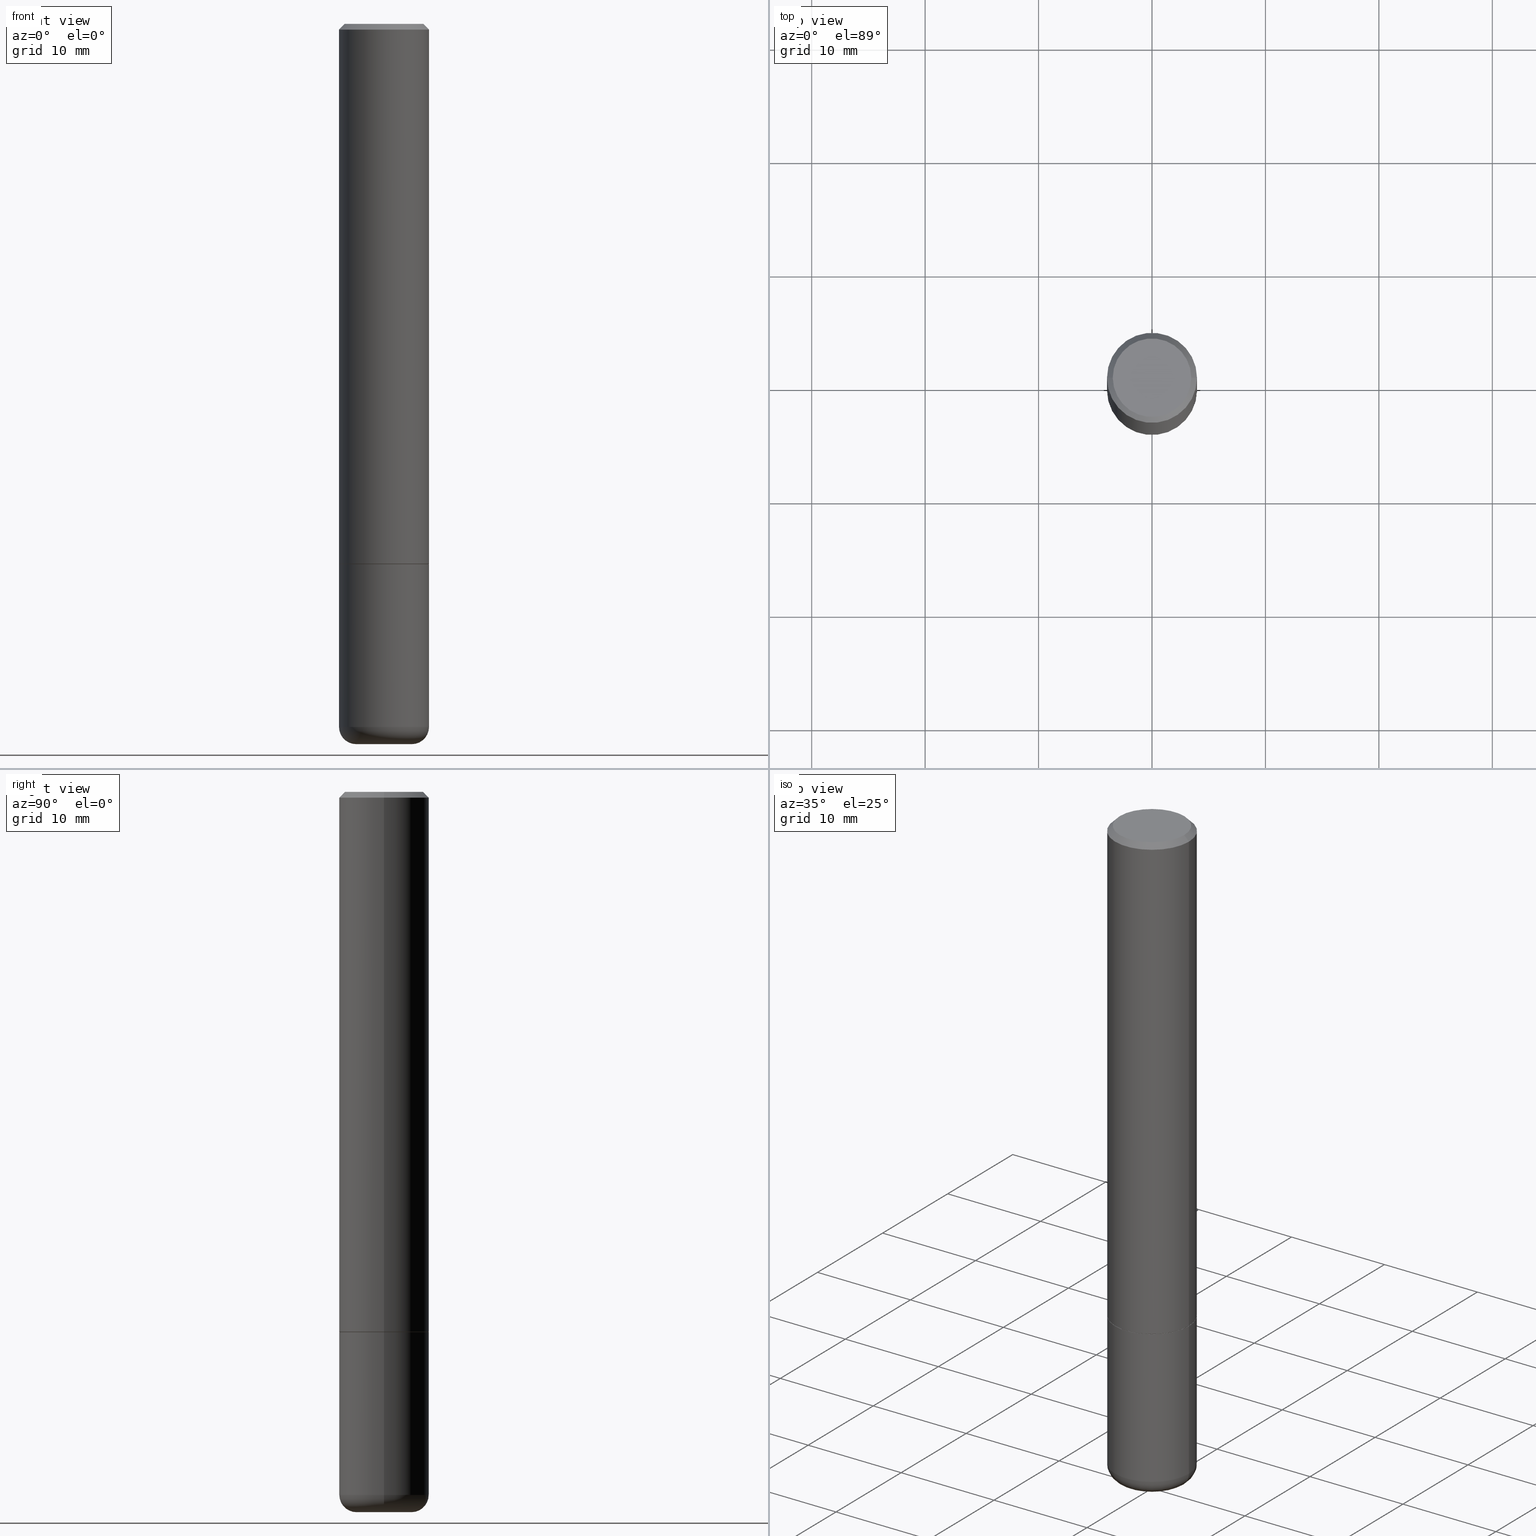
[diagram: canonical four-view strip — front | top / right | iso, engineering-drawing reading convention]
A machine part, canonical four-view strip (front | top / right | iso — engineering-drawing reading convention). The complete STEP part file that produces these views, byte-faithful:
ISO-10303-21;
HEADER;
FILE_DESCRIPTION (( 'STEP AP203' ),
    '1' );
FILE_NAME ('38810.STEP',
    '2024-03-03T14:09:54',
    ( '' ),
    ( '' ),
    'SwSTEP 2.0',
    'SolidWorks 2023',
    '' );
FILE_SCHEMA (( 'CONFIG_CONTROL_DESIGN' ));
ENDSEC;

DATA;
#1 = VERTEX_POINT ( 'NONE', #255 ) ;
#2 = LOCAL_TIME ( 9, 9, 54.00000000000000000, #269 ) ;
#3 = DIRECTION ( 'NONE',  ( -1.000000000000000000, 7.105427357600997914E-15, 0.000000000000000000 ) ) ;
#4 = FACE_OUTER_BOUND ( 'NONE', #387, .T. ) ;
#5 = DIRECTION ( 'NONE',  ( -2.445468806185136597E-29, 3.491481338843145583E-15, 1.000000000000000000 ) ) ;
#6 = ORIENTED_EDGE ( 'NONE', *, *, #291, .T. ) ;
#7 = VECTOR ( 'NONE', #49, 39.37007874015748143 ) ;
#8 = ADVANCED_FACE ( 'NONE', ( #4 ), #384, .F. ) ;
#9 = PERSON_AND_ORGANIZATION ( #292, #231 ) ;
#10 = ORIENTED_EDGE ( 'NONE', *, *, #102, .F. ) ;
#11 = ORIENTED_EDGE ( 'NONE', *, *, #151, .F. ) ;
#12 = COORDINATED_UNIVERSAL_TIME_OFFSET ( 5, 0, .BEHIND. ) ;
#13 = APPLICATION_CONTEXT ( 'configuration controlled 3d designs of mechanical parts and assemblies' ) ;
#14 = PRODUCT_DEFINITION ( 'UNKNOWN', '', #74, #248 ) ;
#15 = AXIS2_PLACEMENT_3D ( 'NONE', #309, #30, #129 ) ;
#16 = CARTESIAN_POINT ( 'NONE',  ( -0.1562500000000000278, 1.021258291611616467E-15, -0.02000000000000003511 ) ) ;
#17 = ORIENTED_EDGE ( 'NONE', *, *, #284, .F. ) ;
#18 = PERSON_AND_ORGANIZATION ( #292, #231 ) ;
#19 = SECURITY_CLASSIFICATION_LEVEL ( 'unclassified' ) ;
#20 = LINE ( 'NONE', #16, #7 ) ;
#21 = ORIENTED_EDGE ( 'NONE', *, *, #89, .F. ) ;
#22 = EDGE_CURVE ( 'NONE', #80, #240, #131, .T. ) ;
#23 = ORIENTED_EDGE ( 'NONE', *, *, #22, .T. ) ;
#24 = FACE_OUTER_BOUND ( 'NONE', #167, .T. ) ;
#25 = CARTESIAN_POINT ( 'NONE',  ( -0.09625000000000000222, -7.726898703045442122E-15, -2.500000000000000444 ) ) ;
#26 = APPROVAL_PERSON_ORGANIZATION ( #18, #304, #53 ) ;
#27 = CARTESIAN_POINT ( 'NONE',  ( 4.585254011597131119E-29, -6.546527510330898707E-15, -1.875000000000000000 ) ) ;
#28 = DIRECTION ( 'NONE',  ( -2.445468806185136877E-29, 3.491481338843145188E-15, 1.000000000000000000 ) ) ;
#29 = EDGE_CURVE ( 'NONE', #198, #37, #236, .T. ) ;
#30 = DIRECTION ( 'NONE',  ( -2.445468806185136597E-29, 3.491481338843145583E-15, 1.000000000000000000 ) ) ;
#31 = CIRCLE ( 'NONE', #344, 0.1362500000000000377 ) ;
#32 = ORIENTED_EDGE ( 'NONE', *, *, #22, .F. ) ;
#33 = COORDINATED_UNIVERSAL_TIME_OFFSET ( 5, 0, .BEHIND. ) ;
#34 = EDGE_CURVE ( 'NONE', #106, #80, #20, .T. ) ;
#35 = DIRECTION ( 'NONE',  ( -2.445468806185136597E-29, 3.491481338843145583E-15, 1.000000000000000000 ) ) ;
#36 = VERTEX_POINT ( 'NONE', #323 ) ;
#37 = VERTEX_POINT ( 'NONE', #358 ) ;
#38 = APPROVAL_DATE_TIME ( #108, #125 ) ;
#39 = CIRCLE ( 'NONE', #181, 0.1562500000000000000 ) ;
#40 = DIRECTION ( 'NONE',  ( -1.000000000000000000, 6.982962677686268288E-15, 0.000000000000000000 ) ) ;
#41 = DIRECTION ( 'NONE',  ( 1.000000000000000000, -6.982962677686268288E-15, 0.000000000000000000 ) ) ;
#42 = DIRECTION ( 'NONE',  ( -2.445468806185136597E-29, 3.491481338843145583E-15, 1.000000000000000000 ) ) ;
#43 = PERSON_AND_ORGANIZATION_ROLE ( 'design_owner' ) ;
#44 = FACE_OUTER_BOUND ( 'NONE', #300, .T. ) ;
#45 = ORIENTED_EDGE ( 'NONE', *, *, #89, .T. ) ;
#46 = CC_DESIGN_PERSON_AND_ORGANIZATION_ASSIGNMENT ( #227, #355, ( #14 ) ) ;
#47 = PERSON_AND_ORGANIZATION ( #292, #231 ) ;
#48 = DATE_AND_TIME ( #122, #319 ) ;
#49 = DIRECTION ( 'NONE',  ( -0.7071067811865467956, 2.468850131082249172E-15, -0.7071067811865482389 ) ) ;
#50 = CIRCLE ( 'NONE', #273, 0.09625000000000000222 ) ;
#51 = PERSON_AND_ORGANIZATION ( #292, #231 ) ;
#52 = LINE ( 'NONE', #326, #72 ) ;
#53 = APPROVAL_ROLE ( '' ) ;
#54 = CARTESIAN_POINT ( 'NONE',  ( 0.000000000000000000, 0.000000000000000000, 0.000000000000000000 ) ) ;
#55 = AXIS2_PLACEMENT_3D ( 'NONE', #415, #254, #3 ) ;
#56 = DIRECTION ( 'NONE',  ( 1.000000000000000000, -6.982962677686265922E-15, 4.876176775795935793E-29 ) ) ;
#57 = CARTESIAN_POINT ( 'NONE',  ( -0.1562500000000002220, -2.196209803259299803E-15, -1.874000000000000110 ) ) ;
#58 = ORIENTED_EDGE ( 'NONE', *, *, #134, .T. ) ;
#59 = CIRCLE ( 'NONE', #114, 0.09625000000000000222 ) ;
#60 = DIRECTION ( 'NONE',  ( 1.000000000000000000, -6.982962677686269077E-15, 0.000000000000000000 ) ) ;
#61 = DIRECTION ( 'NONE',  ( 0.7071067811865957564, -2.468850131082761932E-15, 0.7071067811864992780 ) ) ;
#62 = ORIENTED_EDGE ( 'NONE', *, *, #277, .F. ) ;
#63 = DIRECTION ( 'NONE',  ( -2.445468806185136597E-29, 3.491481338843145583E-15, 1.000000000000000000 ) ) ;
#64 = CARTESIAN_POINT ( 'NONE',  ( 0.000000000000000000, 0.000000000000000000, 0.000000000000000000 ) ) ;
#65 = CIRCLE ( 'NONE', #417, 0.1562500000000000278 ) ;
#66 = VERTEX_POINT ( 'NONE', #270 ) ;
#67 = CARTESIAN_POINT ( 'NONE',  ( 0.000000000000000000, 0.000000000000000000, 0.000000000000000000 ) ) ;
#68 = CARTESIAN_POINT ( 'NONE',  ( 0.1562500000000001388, -1.091087918388480160E-15, 7.619026212181157383E-30 ) ) ;
#69 = APPLICATION_PROTOCOL_DEFINITION ( 'international standard', 'config_control_design', 1994, #141 ) ;
#70 = CYLINDRICAL_SURFACE ( 'NONE', #161, 0.1562500000000001388 ) ;
#71 = ORIENTED_EDGE ( 'NONE', *, *, #164, .F. ) ;
#72 = VECTOR ( 'NONE', #233, 39.37007874015748143 ) ;
#73 = EDGE_CURVE ( 'NONE', #75, #240, #267, .T. ) ;
#74 = PRODUCT_DEFINITION_FORMATION_WITH_SPECIFIED_SOURCE ( 'ANY', '', #189, .NOT_KNOWN. ) ;
#75 = VERTEX_POINT ( 'NONE', #296 ) ;
#76 = EDGE_CURVE ( 'NONE', #375, #368, #140, .T. ) ;
#77 = APPROVAL_STATUS ( 'not_yet_approved' ) ;
#78 = ORIENTED_EDGE ( 'NONE', *, *, #170, .T. ) ;
#79 = DIRECTION ( 'NONE',  ( 1.000000000000000000, -6.982962677686262766E-15, 0.000000000000000000 ) ) ;
#80 = VERTEX_POINT ( 'NONE', #397 ) ;
#81 = CONICAL_SURFACE ( 'NONE', #184, 0.1552499999999999991, 0.7853981633975165577 ) ;
#82 = DIRECTION ( 'NONE',  ( -2.445468806185136597E-29, 3.491481338843145583E-15, 1.000000000000000000 ) ) ;
#83 = PERSON_AND_ORGANIZATION ( #292, #231 ) ;
#84 = DIRECTION ( 'NONE',  ( -2.445468806185136597E-29, 3.491481338843145583E-15, 1.000000000000000000 ) ) ;
#85 = CARTESIAN_POINT ( 'NONE',  ( 0.1552499999999999991, -7.630632466041692655E-15, -1.875000000000000000 ) ) ;
#86 = ORIENTED_EDGE ( 'NONE', *, *, #164, .T. ) ;
#87 = ORIENTED_EDGE ( 'NONE', *, *, #277, .T. ) ;
#88 = APPROVAL_ROLE ( '' ) ;
#89 = EDGE_CURVE ( 'NONE', #198, #80, #115, .T. ) ;
#90 = DIRECTION ( 'NONE',  ( -1.000000000000000000, 6.982962677686265922E-15, -4.876176775795935793E-29 ) ) ;
#91 = CARTESIAN_POINT ( 'NONE',  ( 9.514286648347541549E-16, 0.1362500000000000377, -4.757143324173787538E-16 ) ) ;
#92 = PRODUCT_RELATED_PRODUCT_CATEGORY ( 'detail', '', ( #189 ) ) ;
#93 = ORIENTED_EDGE ( 'NONE', *, *, #144, .F. ) ;
#94 = DIRECTION ( 'NONE',  ( -2.445468806185136877E-29, 3.491481338843145188E-15, 1.000000000000000000 ) ) ;
#95 = ORIENTED_EDGE ( 'NONE', *, *, #238, .T. ) ;
#96 = DATE_AND_TIME ( #407, #317 ) ;
#97 = APPROVAL_PERSON_ORGANIZATION ( #330, #130, #88 ) ;
#98 = AXIS2_PLACEMENT_3D ( 'NONE', #67, #350, #318 ) ;
#99 = DIRECTION ( 'NONE',  ( 2.438088387897960049E-29, -3.491481338843145188E-15, -1.000000000000000000 ) ) ;
#100 = DIRECTION ( 'NONE',  ( -2.445468806185136597E-29, 3.491481338843145583E-15, 1.000000000000000000 ) ) ;
#101 = CARTESIAN_POINT ( 'NONE',  ( 6.113672015462842613E-29, -8.728703347107866520E-15, -2.500000000000000444 ) ) ;
#102 = EDGE_CURVE ( 'NONE', #143, #1, #357, .T. ) ;
#103 = ADVANCED_FACE ( 'NONE', ( #119 ), #150, .T. ) ;
#104 = DIRECTION ( 'NONE',  ( 1.000000000000000000, -6.982962677686268288E-15, 0.000000000000000000 ) ) ;
#105 = CARTESIAN_POINT ( 'NONE',  ( 4.585254011597131119E-29, -6.546527510330898707E-15, -1.875000000000000000 ) ) ;
#106 = VERTEX_POINT ( 'NONE', #229 ) ;
#107 = APPROVAL_PERSON_ORGANIZATION ( #9, #125, #315 ) ;
#108 = DATE_AND_TIME ( #250, #366 ) ;
#109 = EDGE_CURVE ( 'NONE', #37, #198, #388, .T. ) ;
#110 = DIRECTION ( 'NONE',  ( 2.445468806185136597E-29, -3.491481338843145583E-15, -1.000000000000000000 ) ) ;
#111 = AXIS2_PLACEMENT_3D ( 'NONE', #205, #206, #329 ) ;
#112 = MANIFOLD_SOLID_BREP ( 'Body-Move/Copy2[2]', #244 ) ;
#113 = DIRECTION ( 'NONE',  ( -1.000000000000000000, 6.982962677686268288E-15, 0.000000000000000000 ) ) ;
#114 = AXIS2_PLACEMENT_3D ( 'NONE', #314, #35, #285 ) ;
#115 = LINE ( 'NONE', #145, #225 ) ;
#116 = CIRCLE ( 'NONE', #118, 0.06000000000000021289 ) ;
#117 = ORIENTED_EDGE ( 'NONE', *, *, #249, .T. ) ;
#118 = AXIS2_PLACEMENT_3D ( 'NONE', #256, #353, #351 ) ;
#119 = FACE_OUTER_BOUND ( 'NONE', #237, .T. ) ;
#120 = ORIENTED_EDGE ( 'NONE', *, *, #109, .F. ) ;
#121 = CIRCLE ( 'NONE', #259, 0.1362500000000000377 ) ;
#122 = CALENDAR_DATE ( 2024, 3, 3 ) ;
#123 = CARTESIAN_POINT ( 'NONE',  ( 0.1562500000000000278, -1.141782438928665105E-15, -0.02000000000000003511 ) ) ;
#124 = DIRECTION ( 'NONE',  ( -1.000000000000000000, 6.982962677686265922E-15, -4.876176775795935793E-29 ) ) ;
#125 = APPROVAL ( #142, 'UNSPECIFIED' ) ;
#126 = DIRECTION ( 'NONE',  ( 1.000000000000000000, -6.982962677686266711E-15, 4.876176775795936353E-29 ) ) ;
#127 = CIRCLE ( 'NONE', #242, 0.1552499999999999991 ) ;
#128 = CARTESIAN_POINT ( 'NONE',  ( -0.1562500000000001110, -7.408991442152118508E-15, -2.440000000000000391 ) ) ;
#129 = DIRECTION ( 'NONE',  ( 1.000000000000000000, -6.982962677686266711E-15, 4.876176775795936353E-29 ) ) ;
#130 = APPROVAL ( #77, 'UNSPECIFIED' ) ;
#131 = CIRCLE ( 'NONE', #379, 0.1562500000000000278 ) ;
#132 = DIRECTION ( 'NONE',  ( 2.445468806185136597E-29, -3.491481338843145583E-15, -1.000000000000000000 ) ) ;
#133 = ORIENTED_EDGE ( 'NONE', *, *, #214, .F. ) ;
#134 = EDGE_CURVE ( 'NONE', #1, #198, #52, .T. ) ;
#135 = CC_DESIGN_SECURITY_CLASSIFICATION ( #336, ( #74 ) ) ;
#136 = DIRECTION ( 'NONE',  ( 1.000000000000000000, -6.982962677686266711E-15, 4.876176775795936353E-29 ) ) ;
#137 = ORIENTED_EDGE ( 'NONE', *, *, #170, .F. ) ;
#138 = FACE_OUTER_BOUND ( 'NONE', #362, .T. ) ;
#139 = ORIENTED_EDGE ( 'NONE', *, *, #230, .F. ) ;
#140 = CIRCLE ( 'NONE', #331, 0.1562500000000000000 ) ;
#141 = APPLICATION_CONTEXT ( 'configuration controlled 3d designs of mechanical parts and assemblies' ) ;
#142 = APPROVAL_STATUS ( 'not_yet_approved' ) ;
#143 = VERTEX_POINT ( 'NONE', #85 ) ;
#144 = EDGE_CURVE ( 'NONE', #66, #348, #39, .T. ) ;
#145 = CARTESIAN_POINT ( 'NONE',  ( -0.1562500000000001388, 1.110223024625157526E-15, -7.685836078523296765E-30 ) ) ;
#146 = DIRECTION ( 'NONE',  ( 0.7071067811865467956, -7.319954787623254468E-15, -0.7071067811865482389 ) ) ;
#147 = ADVANCED_FACE ( 'NONE', ( #363 ), #335, .T. ) ;
#148 = ORIENTED_EDGE ( 'NONE', *, *, #291, .F. ) ;
#149 = DIRECTION ( 'NONE',  ( -2.445468806185136597E-29, 3.491481338843145583E-15, 1.000000000000000000 ) ) ;
#150 = CONICAL_SURFACE ( 'NONE', #271, 0.1562500000000000278, 0.7853981633974472798 ) ;
#151 = EDGE_CURVE ( 'NONE', #240, #80, #65, .T. ) ;
#152 =( CONVERSION_BASED_UNIT ( 'INCH', #280 ) LENGTH_UNIT ( ) NAMED_UNIT ( #321 ) );
#153 = AXIS2_PLACEMENT_3D ( 'NONE', #27, #212, #56 ) ;
#154 =( NAMED_UNIT ( * ) SI_UNIT ( $, .STERADIAN. ) SOLID_ANGLE_UNIT ( ) );
#155 = SHAPE_DEFINITION_REPRESENTATION ( #377, #322 ) ;
#156 = DIRECTION ( 'NONE',  ( 1.000000000000000000, -6.982962677686266711E-15, 4.876176775795936353E-29 ) ) ;
#157 = DIRECTION ( 'NONE',  ( 2.438088387897960049E-29, -3.491481338843145188E-15, -1.000000000000000000 ) ) ;
#158 = LINE ( 'NONE', #301, #310 ) ;
#159 = DIRECTION ( 'NONE',  ( 1.000000000000000000, -6.982962677686265922E-15, 4.883557194083112340E-29 ) ) ;
#160 = DIRECTION ( 'NONE',  ( 1.000000000000000000, -6.982962677686266711E-15, 4.876176775795936353E-29 ) ) ;
#161 = AXIS2_PLACEMENT_3D ( 'NONE', #165, #5, #136 ) ;
#162 = CONICAL_SURFACE ( 'NONE', #264, 0.1552499999999999991, 0.7853981633975165577 ) ;
#163 = CIRCLE ( 'NONE', #395, 0.1562500000000000000 ) ;
#164 = EDGE_CURVE ( 'NONE', #75, #106, #121, .T. ) ;
#165 = CARTESIAN_POINT ( 'NONE',  ( 0.000000000000000000, 0.000000000000000000, 0.000000000000000000 ) ) ;
#166 = LINE ( 'NONE', #68, #374 ) ;
#167 = EDGE_LOOP ( 'NONE', ( #139, #272, #192, #93 ) ) ;
#168 = ORIENTED_EDGE ( 'NONE', *, *, #311, .F. ) ;
#169 = PERSON_AND_ORGANIZATION_ROLE ( 'classification_officer' ) ;
#170 = EDGE_CURVE ( 'NONE', #106, #75, #31, .T. ) ;
#171 = DIRECTION ( 'NONE',  ( -2.445468806185136597E-29, 3.491481338843145583E-15, 1.000000000000000000 ) ) ;
#172 = VECTOR ( 'NONE', #146, 39.37007874015748143 ) ;
#173 = CARTESIAN_POINT ( 'NONE',  ( 4.585254011597131119E-29, -6.546527510330898707E-15, -1.875000000000000000 ) ) ;
#174 = DATE_AND_TIME ( #365, #372 ) ;
#175 = CARTESIAN_POINT ( 'NONE',  ( 5.966943887091733341E-29, -8.519214466777275048E-15, -2.440000000000000391 ) ) ;
#176 = ORIENTED_EDGE ( 'NONE', *, *, #311, .T. ) ;
#177 = CARTESIAN_POINT ( 'NONE',  ( 0.1552499999999999991, -7.630632466041692655E-15, -1.875000000000000000 ) ) ;
#178 = CC_DESIGN_DATE_AND_TIME_ASSIGNMENT ( #174, #204, ( #14 ) ) ;
#179 = DIRECTION ( 'NONE',  ( 1.000000000000000000, -6.982962677686266711E-15, 0.000000000000000000 ) ) ;
#180 = CARTESIAN_POINT ( 'NONE',  ( 0.1562500000000001110, -9.610302385165753433E-15, -2.440000000000000391 ) ) ;
#181 = AXIS2_PLACEMENT_3D ( 'NONE', #173, #208, #235 ) ;
#182 = DIRECTION ( 'NONE',  ( -2.445468806185136597E-29, 3.491481338843145583E-15, 1.000000000000000000 ) ) ;
#183 = ORIENTED_EDGE ( 'NONE', *, *, #144, .T. ) ;
#184 = AXIS2_PLACEMENT_3D ( 'NONE', #389, #401, #305 ) ;
#185 = CARTESIAN_POINT ( 'NONE',  ( 0.1562500000000000278, -1.141782438928665105E-15, -0.02000000000000003511 ) ) ;
#186 = CARTESIAN_POINT ( 'NONE',  ( -3.796142312261662725E-29, -2.292012149601313989E-14, -2.500000000000000000 ) ) ;
#187 = CYLINDRICAL_SURFACE ( 'NONE', #15, 0.1562500000000000000 ) ;
#188 = CARTESIAN_POINT ( 'NONE',  ( 5.966943887091733341E-29, -8.519214466777275048E-15, -2.440000000000000391 ) ) ;
#189 = PRODUCT ( '38810', '38810', '', ( #418 ) ) ;
#190 = FACE_OUTER_BOUND ( 'NONE', #306, .T. ) ;
#191 =( GEOMETRIC_REPRESENTATION_CONTEXT ( 3 ) GLOBAL_UNCERTAINTY_ASSIGNED_CONTEXT ( ( #216 ) ) GLOBAL_UNIT_ASSIGNED_CONTEXT ( ( #152, #340, #154 ) ) REPRESENTATION_CONTEXT ( 'NONE', 'WORKASPACE' ) );
#192 = ORIENTED_EDGE ( 'NONE', *, *, #214, .T. ) ;
#193 = CC_DESIGN_PERSON_AND_ORGANIZATION_ASSIGNMENT ( #83, #324, ( #74 ) ) ;
#194 = PERSON_AND_ORGANIZATION ( #292, #231 ) ;
#195 = FACE_OUTER_BOUND ( 'NONE', #224, .T. ) ;
#196 = ORIENTED_EDGE ( 'NONE', *, *, #34, .F. ) ;
#197 = AXIS2_PLACEMENT_3D ( 'NONE', #266, #149, #211 ) ;
#198 = VERTEX_POINT ( 'NONE', #57 ) ;
#199 = DIRECTION ( 'NONE',  ( -2.445468806185136597E-29, 3.491481338843145583E-15, 1.000000000000000000 ) ) ;
#200 = DIRECTION ( 'NONE',  ( -1.000000000000000000, 6.982962677686265922E-15, -4.876176775795935793E-29 ) ) ;
#201 = CC_DESIGN_PERSON_AND_ORGANIZATION_ASSIGNMENT ( #194, #43, ( #189 ) ) ;
#202 = DATE_TIME_ROLE ( 'classification_date' ) ;
#203 = AXIS2_PLACEMENT_3D ( 'NONE', #263, #82, #394 ) ;
#204 = DATE_TIME_ROLE ( 'creation_date' ) ;
#205 = CARTESIAN_POINT ( 'NONE',  ( 4.582808542790945516E-29, -6.543036028992054911E-15, -1.874000000000000110 ) ) ;
#206 = DIRECTION ( 'NONE',  ( -2.445468806185136597E-29, 3.491481338843145583E-15, 1.000000000000000000 ) ) ;
#207 = ORIENTED_EDGE ( 'NONE', *, *, #109, .T. ) ;
#208 = DIRECTION ( 'NONE',  ( -2.445468806185136597E-29, 3.491481338843145583E-15, 1.000000000000000000 ) ) ;
#209 = ORIENTED_EDGE ( 'NONE', *, *, #238, .F. ) ;
#210 = CALENDAR_DATE ( 2024, 3, 3 ) ;
#211 = DIRECTION ( 'NONE',  ( 1.000000000000000000, -6.982962677686265922E-15, 0.000000000000000000 ) ) ;
#212 = DIRECTION ( 'NONE',  ( -2.438088387897960049E-29, 3.491481338843145188E-15, 1.000000000000000000 ) ) ;
#213 = CC_DESIGN_APPROVAL ( #130, ( #74 ) ) ;
#214 = EDGE_CURVE ( 'NONE', #375, #348, #158, .T. ) ;
#215 =( LENGTH_UNIT ( ) NAMED_UNIT ( * ) SI_UNIT ( $, .METRE. ) );
#216 = UNCERTAINTY_MEASURE_WITH_UNIT (LENGTH_MEASURE( 1.000000000000000082E-05 ), #152, 'distance_accuracy_value', 'NONE');
#217 = CARTESIAN_POINT ( 'NONE',  ( 4.585254011597131119E-29, -6.546527510330898707E-15, -1.875000000000000000 ) ) ;
#218 = EDGE_CURVE ( 'NONE', #368, #375, #228, .T. ) ;
#219 = ORIENTED_EDGE ( 'NONE', *, *, #249, .F. ) ;
#220 = DIRECTION ( 'NONE',  ( -2.445468806185136597E-29, 3.491481338843145583E-15, 1.000000000000000000 ) ) ;
#221 = AXIS2_PLACEMENT_3D ( 'NONE', #367, #404, #126 ) ;
#222 = ORIENTED_EDGE ( 'NONE', *, *, #268, .F. ) ;
#223 = ADVANCED_FACE ( 'NONE', ( #24 ), #282, .T. ) ;
#224 = EDGE_LOOP ( 'NONE', ( #381, #58, #120, #361 ) ) ;
#225 = VECTOR ( 'NONE', #400, 39.37007874015748143 ) ;
#226 = CARTESIAN_POINT ( 'NONE',  ( 5.966943887091733341E-29, -8.519214466777275048E-15, -2.440000000000000391 ) ) ;
#227 = PERSON_AND_ORGANIZATION ( #292, #231 ) ;
#228 = CIRCLE ( 'NONE', #370, 0.1562500000000000000 ) ;
#229 = CARTESIAN_POINT ( 'NONE',  ( -0.1362500000000000377, 9.863434782231852123E-16, -6.775751096333141285E-30 ) ) ;
#230 = EDGE_CURVE ( 'NONE', #368, #66, #241, .T. ) ;
#231 = ORGANIZATION ( 'UNSPECIFIED', 'UNSPECIFIED', '' ) ;
#232 = DATE_AND_TIME ( #210, #2 ) ;
#233 = DIRECTION ( 'NONE',  ( -0.7071067811865957564, 7.493145998870527710E-15, 0.7071067811864992780 ) ) ;
#234 = ORIENTED_EDGE ( 'NONE', *, *, #73, .T. ) ;
#235 = DIRECTION ( 'NONE',  ( 1.000000000000000000, -6.982962677686269077E-15, 0.000000000000000000 ) ) ;
#236 = CIRCLE ( 'NONE', #197, 0.1562500000000002220 ) ;
#237 = EDGE_LOOP ( 'NONE', ( #390, #137, #399, #23 ) ) ;
#238 = EDGE_CURVE ( 'NONE', #348, #66, #163, .T. ) ;
#239 = DIRECTION ( 'NONE',  ( 1.000000000000000000, -6.982962677686266711E-15, 4.876176775795936353E-29 ) ) ;
#240 = VERTEX_POINT ( 'NONE', #185 ) ;
#241 = LINE ( 'NONE', #369, #339 ) ;
#242 = AXIS2_PLACEMENT_3D ( 'NONE', #247, #100, #41 ) ;
#243 = ADVANCED_FACE ( 'NONE', ( #408 ), #187, .T. ) ;
#244 = CLOSED_SHELL ( 'NONE', ( #316, #295, #262, #103, #147, #332, #409, #360 ) ) ;
#245 = DIRECTION ( 'NONE',  ( 1.000000000000000000, -6.982962677686262766E-15, 0.000000000000000000 ) ) ;
#246 = AXIS2_PLACEMENT_3D ( 'NONE', #91, #99, #90 ) ;
#247 = CARTESIAN_POINT ( 'NONE',  ( 4.585254011597131119E-29, -6.546527510330898707E-15, -1.875000000000000000 ) ) ;
#248 = DESIGN_CONTEXT ( 'detailed design', #141, 'design' ) ;
#249 = EDGE_CURVE ( 'NONE', #1, #143, #127, .T. ) ;
#250 = CALENDAR_DATE ( 2024, 3, 3 ) ;
#251 = DIRECTION ( 'NONE',  ( -2.445468806185136877E-29, 3.491481338843145188E-15, 1.000000000000000000 ) ) ;
#252 = MANIFOLD_SOLID_BREP ( 'Body-Move/Copy2[1]', #333 ) ;
#253 = EDGE_LOOP ( 'NONE', ( #78, #86 ) ) ;
#254 = DIRECTION ( 'NONE',  ( 7.105427357601001859E-15, 1.000000000000000000, -3.491481338843145583E-15 ) ) ;
#255 = CARTESIAN_POINT ( 'NONE',  ( -0.1552499999999999991, -5.438111458715120773E-15, -1.875000000000000000 ) ) ;
#256 = CARTESIAN_POINT ( 'NONE',  ( 0.09625000000000000222, -9.191324624504578377E-15, -2.440000000000000391 ) ) ;
#257 = ORIENTED_EDGE ( 'NONE', *, *, #29, .F. ) ;
#258 = CC_DESIGN_DATE_AND_TIME_ASSIGNMENT ( #48, #202, ( #336 ) ) ;
#259 = AXIS2_PLACEMENT_3D ( 'NONE', #64, #341, #239 ) ;
#260 = ORIENTED_EDGE ( 'NONE', *, *, #134, .F. ) ;
#261 = EDGE_LOOP ( 'NONE', ( #10, #219 ) ) ;
#262 = ADVANCED_FACE ( 'NONE', ( #190 ), #281, .T. ) ;
#263 = CARTESIAN_POINT ( 'NONE',  ( 4.585254011597131119E-29, -6.546527510330898707E-15, -1.875000000000000000 ) ) ;
#264 = AXIS2_PLACEMENT_3D ( 'NONE', #380, #385, #104 ) ;
#265 = AXIS2_PLACEMENT_3D ( 'NONE', #54, #220, #160 ) ;
#266 = CARTESIAN_POINT ( 'NONE',  ( 4.582808542790945516E-29, -6.543036028992054911E-15, -1.874000000000000110 ) ) ;
#267 = LINE ( 'NONE', #123, #172 ) ;
#268 = EDGE_CURVE ( 'NONE', #36, #416, #50, .T. ) ;
#269 = COORDINATED_UNIVERSAL_TIME_OFFSET ( 5, 0, .BEHIND. ) ;
#270 = CARTESIAN_POINT ( 'NONE',  ( -0.1562500000000000000, -6.422647963928930337E-15, -1.875000000000000000 ) ) ;
#271 = AXIS2_PLACEMENT_3D ( 'NONE', #396, #110, #113 ) ;
#272 = ORIENTED_EDGE ( 'NONE', *, *, #218, .T. ) ;
#273 = AXIS2_PLACEMENT_3D ( 'NONE', #101, #199, #286 ) ;
#274 = CC_DESIGN_APPROVAL ( #125, ( #14 ) ) ;
#275 = CARTESIAN_POINT ( 'NONE',  ( 5.966943887091733341E-29, -8.519214466777275048E-15, -2.440000000000000391 ) ) ;
#276 = CARTESIAN_POINT ( 'NONE',  ( 0.1562500000000000000, -7.637615428719378669E-15, -1.875000000000000000 ) ) ;
#277 = EDGE_CURVE ( 'NONE', #416, #36, #59, .T. ) ;
#278 = PLANE ( 'NONE',  #346 ) ;
#279 = DIRECTION ( 'NONE',  ( -2.445468806185136597E-29, 3.491481338843145583E-15, 1.000000000000000000 ) ) ;
#280 = LENGTH_MEASURE_WITH_UNIT ( LENGTH_MEASURE( 0.02539999999999999897 ), #215 );
#281 = CONICAL_SURFACE ( 'NONE', #410, 0.1562500000000000278, 0.7853981633974472798 ) ;
#282 = CYLINDRICAL_SURFACE ( 'NONE', #221, 0.1562500000000000000 ) ;
#283 = VECTOR ( 'NONE', #61, 39.37007874015748143 ) ;
#284 = EDGE_CURVE ( 'NONE', #416, #368, #327, .T. ) ;
#285 = DIRECTION ( 'NONE',  ( 1.000000000000000000, -6.982962677686269077E-15, 0.000000000000000000 ) ) ;
#286 = DIRECTION ( 'NONE',  ( 1.000000000000000000, -6.982962677686269077E-15, 0.000000000000000000 ) ) ;
#287 = ORIENTED_EDGE ( 'NONE', *, *, #151, .T. ) ;
#288 = ORIENTED_EDGE ( 'NONE', *, *, #356, .T. ) ;
#289 = TOROIDAL_SURFACE ( 'NONE', #298, 0.09625000000000000222, 0.06000000000000023370 ) ;
#290 = ORIENTED_EDGE ( 'NONE', *, *, #76, .F. ) ;
#291 = EDGE_CURVE ( 'NONE', #37, #240, #166, .T. ) ;
#292 = PERSON ( 'UNSPECIFIED', 'UNSPECIFIED', 'UNSPECIFIED', ('UNSPECIFIED'), ('UNSPECIFIED'), ('UNSPECIFIED') ) ;
#293 = DIRECTION ( 'NONE',  ( 1.000000000000000000, -6.982962677686266711E-15, 0.000000000000000000 ) ) ;
#294 = DIRECTION ( 'NONE',  ( 2.438088387897960049E-29, -3.491481338843145188E-15, -1.000000000000000000 ) ) ;
#295 = ADVANCED_FACE ( 'NONE', ( #44 ), #70, .T. ) ;
#296 = CARTESIAN_POINT ( 'NONE',  ( 0.1362500000000000377, -1.038262645562518322E-15, 6.957025900226697878E-30 ) ) ;
#297 = AXIS2_PLACEMENT_3D ( 'NONE', #105, #294, #200 ) ;
#298 = AXIS2_PLACEMENT_3D ( 'NONE', #226, #84, #159 ) ;
#299 = PERSON_AND_ORGANIZATION_ROLE ( 'design_supplier' ) ;
#300 = EDGE_LOOP ( 'NONE', ( #207, #45, #11, #148 ) ) ;
#301 = CARTESIAN_POINT ( 'NONE',  ( 0.1562500000000000000, -1.091087918388479174E-15, 7.619026212181150377E-30 ) ) ;
#302 = FACE_OUTER_BOUND ( 'NONE', #261, .T. ) ;
#303 = APPROVAL_DATE_TIME ( #96, #304 ) ;
#304 = APPROVAL ( #334, 'UNSPECIFIED' ) ;
#305 = DIRECTION ( 'NONE',  ( 1.000000000000000000, -6.982962677686268288E-15, 0.000000000000000000 ) ) ;
#306 = EDGE_LOOP ( 'NONE', ( #71, #234, #287, #196 ) ) ;
#307 = CC_DESIGN_APPROVAL ( #304, ( #336 ) ) ;
#308 = CARTESIAN_POINT ( 'NONE',  ( 0.000000000000000000, 0.000000000000000000, 0.000000000000000000 ) ) ;
#309 = CARTESIAN_POINT ( 'NONE',  ( 0.000000000000000000, 0.000000000000000000, 0.000000000000000000 ) ) ;
#310 = VECTOR ( 'NONE', #28, 39.37007874015748143 ) ;
#311 = EDGE_CURVE ( 'NONE', #36, #375, #116, .T. ) ;
#312 = FACE_OUTER_BOUND ( 'NONE', #359, .T. ) ;
#313 = COORDINATED_UNIVERSAL_TIME_OFFSET ( 5, 0, .BEHIND. ) ;
#314 = CARTESIAN_POINT ( 'NONE',  ( 6.113672015462842613E-29, -8.728703347107866520E-15, -2.500000000000000444 ) ) ;
#315 = APPROVAL_ROLE ( '' ) ;
#316 = ADVANCED_FACE ( 'NONE', ( #195 ), #162, .T. ) ;
#317 = LOCAL_TIME ( 9, 9, 54.00000000000000000, #33 ) ;
#318 = DIRECTION ( 'NONE',  ( 1.000000000000000000, 0.000000000000000000, 0.000000000000000000 ) ) ;
#319 = LOCAL_TIME ( 9, 9, 54.00000000000000000, #12 ) ;
#320 = CARTESIAN_POINT ( 'NONE',  ( 4.890937612370281041E-31, -6.982962677686302702E-17, -0.02000000000000003511 ) ) ;
#321 = DIMENSIONAL_EXPONENTS ( 1.000000000000000000, 0.000000000000000000, 0.000000000000000000, 0.000000000000000000, 0.000000000000000000, 0.000000000000000000, 0.000000000000000000 ) ;
#322 = ADVANCED_BREP_SHAPE_REPRESENTATION ( '38810', ( #252, #112, #98 ), #191 ) ;
#323 = CARTESIAN_POINT ( 'NONE',  ( 0.09625000000000000222, -9.400813504835169849E-15, -2.500000000000000444 ) ) ;
#324 = PERSON_AND_ORGANIZATION_ROLE ( 'creator' ) ;
#325 = TOROIDAL_SURFACE ( 'NONE', #383, 0.09625000000000000222, 0.06000000000000023370 ) ;
#326 = CARTESIAN_POINT ( 'NONE',  ( -0.1552499999999999991, -5.443409913063343964E-15, -1.875000000000000000 ) ) ;
#327 = CIRCLE ( 'NONE', #55, 0.06000000000000021289 ) ;
#328 = APPROVAL_DATE_TIME ( #232, #130 ) ;
#329 = DIRECTION ( 'NONE',  ( 1.000000000000000000, -6.982962677686265922E-15, 0.000000000000000000 ) ) ;
#330 = PERSON_AND_ORGANIZATION ( #292, #231 ) ;
#331 = AXIS2_PLACEMENT_3D ( 'NONE', #175, #171, #79 ) ;
#332 = ADVANCED_FACE ( 'NONE', ( #138 ), #81, .T. ) ;
#333 = CLOSED_SHELL ( 'NONE', ( #243, #343, #8, #223, #349, #414 ) ) ;
#334 = APPROVAL_STATUS ( 'not_yet_approved' ) ;
#335 = CYLINDRICAL_SURFACE ( 'NONE', #265, 0.1562500000000001388 ) ;
#336 = SECURITY_CLASSIFICATION ( '', '', #19 ) ;
#337 = EDGE_LOOP ( 'NONE', ( #222, #62 ) ) ;
#338 = CC_DESIGN_PERSON_AND_ORGANIZATION_ASSIGNMENT ( #47, #299, ( #74 ) ) ;
#339 = VECTOR ( 'NONE', #94, 39.37007874015748143 ) ;
#340 =( NAMED_UNIT ( * ) PLANE_ANGLE_UNIT ( ) SI_UNIT ( $, .RADIAN. ) );
#341 = DIRECTION ( 'NONE',  ( -2.445468806185136597E-29, 3.491481338843145583E-15, 1.000000000000000000 ) ) ;
#342 = DIRECTION ( 'NONE',  ( -2.445468806185136597E-29, 3.491481338843145583E-15, 1.000000000000000000 ) ) ;
#343 = ADVANCED_FACE ( 'NONE', ( #391 ), #289, .T. ) ;
#344 = AXIS2_PLACEMENT_3D ( 'NONE', #308, #279, #156 ) ;
#345 = ORIENTED_EDGE ( 'NONE', *, *, #218, .F. ) ;
#346 = AXIS2_PLACEMENT_3D ( 'NONE', #186, #157, #124 ) ;
#347 = APPLICATION_PROTOCOL_DEFINITION ( 'international standard', 'config_control_design', 1994, #13 ) ;
#348 = VERTEX_POINT ( 'NONE', #276 ) ;
#349 = ADVANCED_FACE ( 'NONE', ( #312 ), #325, .T. ) ;
#350 = DIRECTION ( 'NONE',  ( 0.000000000000000000, 0.000000000000000000, 1.000000000000000000 ) ) ;
#351 = DIRECTION ( 'NONE',  ( 1.000000000000000000, -6.982962677686275388E-15, 0.000000000000000000 ) ) ;
#352 = EDGE_LOOP ( 'NONE', ( #412, #354, #209, #133 ) ) ;
#353 = DIRECTION ( 'NONE',  ( -6.982962677686266711E-15, -1.000000000000000000, 3.491481338843145583E-15 ) ) ;
#354 = ORIENTED_EDGE ( 'NONE', *, *, #230, .T. ) ;
#355 = PERSON_AND_ORGANIZATION_ROLE ( 'creator' ) ;
#356 = EDGE_CURVE ( 'NONE', #143, #37, #402, .T. ) ;
#357 = CIRCLE ( 'NONE', #203, 0.1552499999999999991 ) ;
#358 = CARTESIAN_POINT ( 'NONE',  ( 0.1562500000000002220, -7.634123947380535662E-15, -1.874000000000000110 ) ) ;
#359 = EDGE_LOOP ( 'NONE', ( #17, #87, #176, #345 ) ) ;
#360 = ADVANCED_FACE ( 'NONE', ( #371 ), #364, .F. ) ;
#361 = ORIENTED_EDGE ( 'NONE', *, *, #356, .F. ) ;
#362 = EDGE_LOOP ( 'NONE', ( #260, #117, #288, #257 ) ) ;
#363 = FACE_OUTER_BOUND ( 'NONE', #376, .T. ) ;
#364 = PLANE ( 'NONE',  #246 ) ;
#365 = CALENDAR_DATE ( 2024, 3, 3 ) ;
#366 = LOCAL_TIME ( 9, 9, 54.00000000000000000, #392 ) ;
#367 = CARTESIAN_POINT ( 'NONE',  ( 0.000000000000000000, 0.000000000000000000, 0.000000000000000000 ) ) ;
#368 = VERTEX_POINT ( 'NONE', #128 ) ;
#369 = CARTESIAN_POINT ( 'NONE',  ( -0.1562500000000000000, 1.110223024625156540E-15, -7.685836078523291160E-30 ) ) ;
#370 = AXIS2_PLACEMENT_3D ( 'NONE', #275, #342, #245 ) ;
#371 = FACE_OUTER_BOUND ( 'NONE', #253, .T. ) ;
#372 = LOCAL_TIME ( 9, 9, 54.00000000000000000, #313 ) ;
#373 = ORIENTED_EDGE ( 'NONE', *, *, #284, .T. ) ;
#374 = VECTOR ( 'NONE', #251, 39.37007874015748143 ) ;
#375 = VERTEX_POINT ( 'NONE', #180 ) ;
#376 = EDGE_LOOP ( 'NONE', ( #21, #398, #6, #32 ) ) ;
#377 = PRODUCT_DEFINITION_SHAPE ( 'NONE', 'NONE',  #14 ) ;
#378 = CARTESIAN_POINT ( 'NONE',  ( 4.890937612370281041E-31, -6.982962677686302702E-17, -0.02000000000000003511 ) ) ;
#379 = AXIS2_PLACEMENT_3D ( 'NONE', #320, #42, #293 ) ;
#380 = CARTESIAN_POINT ( 'NONE',  ( 4.585254011597131119E-29, -6.546527510330898707E-15, -1.875000000000000000 ) ) ;
#381 = ORIENTED_EDGE ( 'NONE', *, *, #102, .T. ) ;
#382 = CC_DESIGN_PERSON_AND_ORGANIZATION_ASSIGNMENT ( #51, #169, ( #336 ) ) ;
#383 = AXIS2_PLACEMENT_3D ( 'NONE', #188, #182, #403 ) ;
#384 = PLANE ( 'NONE',  #297 ) ;
#385 = DIRECTION ( 'NONE',  ( -2.445468806185136597E-29, 3.491481338843145583E-15, 1.000000000000000000 ) ) ;
#386 = EDGE_LOOP ( 'NONE', ( #393, #373, #290, #168 ) ) ;
#387 = EDGE_LOOP ( 'NONE', ( #95, #183 ) ) ;
#388 = CIRCLE ( 'NONE', #111, 0.1562500000000002220 ) ;
#389 = CARTESIAN_POINT ( 'NONE',  ( 4.585254011597131119E-29, -6.546527510330898707E-15, -1.875000000000000000 ) ) ;
#390 = ORIENTED_EDGE ( 'NONE', *, *, #73, .F. ) ;
#391 = FACE_OUTER_BOUND ( 'NONE', #386, .T. ) ;
#392 = COORDINATED_UNIVERSAL_TIME_OFFSET ( 5, 0, .BEHIND. ) ;
#393 = ORIENTED_EDGE ( 'NONE', *, *, #268, .T. ) ;
#394 = DIRECTION ( 'NONE',  ( 1.000000000000000000, -6.982962677686268288E-15, 0.000000000000000000 ) ) ;
#395 = AXIS2_PLACEMENT_3D ( 'NONE', #217, #63, #60 ) ;
#396 = CARTESIAN_POINT ( 'NONE',  ( 4.890937612370281041E-31, -6.982962677686302702E-17, -0.02000000000000003511 ) ) ;
#397 = CARTESIAN_POINT ( 'NONE',  ( -0.1562500000000000278, 1.021258291611616467E-15, -0.02000000000000003511 ) ) ;
#398 = ORIENTED_EDGE ( 'NONE', *, *, #29, .T. ) ;
#399 = ORIENTED_EDGE ( 'NONE', *, *, #34, .T. ) ;
#400 = DIRECTION ( 'NONE',  ( -2.445468806185136877E-29, 3.491481338843145188E-15, 1.000000000000000000 ) ) ;
#401 = DIRECTION ( 'NONE',  ( -2.445468806185136597E-29, 3.491481338843145583E-15, 1.000000000000000000 ) ) ;
#402 = LINE ( 'NONE', #177, #283 ) ;
#403 = DIRECTION ( 'NONE',  ( 1.000000000000000000, -6.982962677686265922E-15, 4.883557194083112340E-29 ) ) ;
#404 = DIRECTION ( 'NONE',  ( -2.445468806185136597E-29, 3.491481338843145583E-15, 1.000000000000000000 ) ) ;
#405 = FACE_OUTER_BOUND ( 'NONE', #337, .T. ) ;
#406 = PLANE ( 'NONE',  #153 ) ;
#407 = CALENDAR_DATE ( 2024, 3, 3 ) ;
#408 = FACE_OUTER_BOUND ( 'NONE', #352, .T. ) ;
#409 = ADVANCED_FACE ( 'NONE', ( #302 ), #406, .F. ) ;
#410 = AXIS2_PLACEMENT_3D ( 'NONE', #378, #132, #40 ) ;
#411 = CARTESIAN_POINT ( 'NONE',  ( 4.890937612370281041E-31, -6.982962677686302702E-17, -0.02000000000000003511 ) ) ;
#412 = ORIENTED_EDGE ( 'NONE', *, *, #76, .T. ) ;
#413 = DIRECTION ( 'NONE',  ( -2.445468806185136597E-29, 3.491481338843145583E-15, 1.000000000000000000 ) ) ;
#414 = ADVANCED_FACE ( 'NONE', ( #405 ), #278, .T. ) ;
#415 = CARTESIAN_POINT ( 'NONE',  ( -0.09625000000000000222, -7.835317083608178998E-15, -2.440000000000000391 ) ) ;
#416 = VERTEX_POINT ( 'NONE', #25 ) ;
#417 = AXIS2_PLACEMENT_3D ( 'NONE', #411, #413, #179 ) ;
#418 = MECHANICAL_CONTEXT ( 'NONE', #13, 'mechanical' ) ;
ENDSEC;
END-ISO-10303-21;
